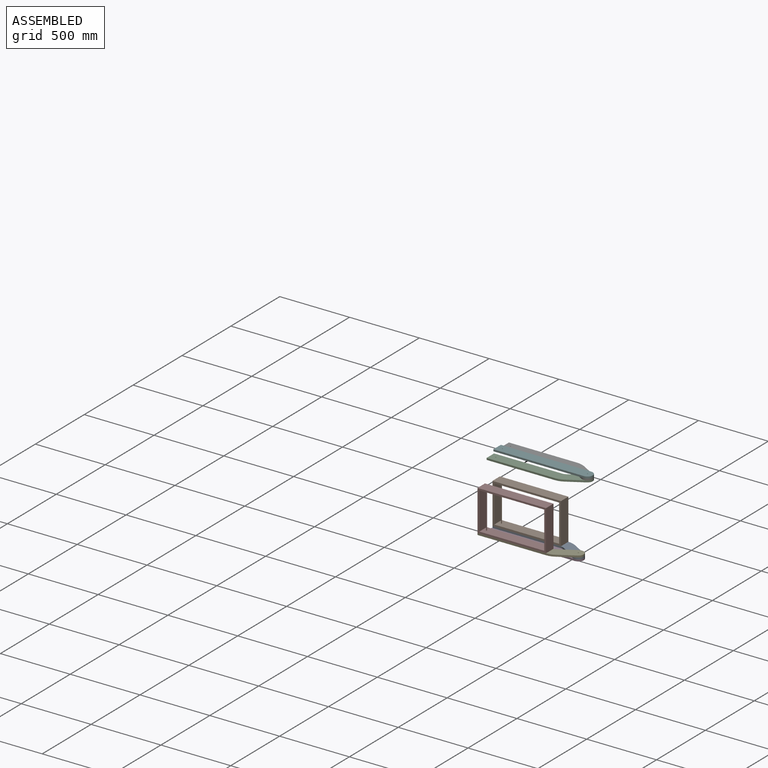
[diagram: assembled view]
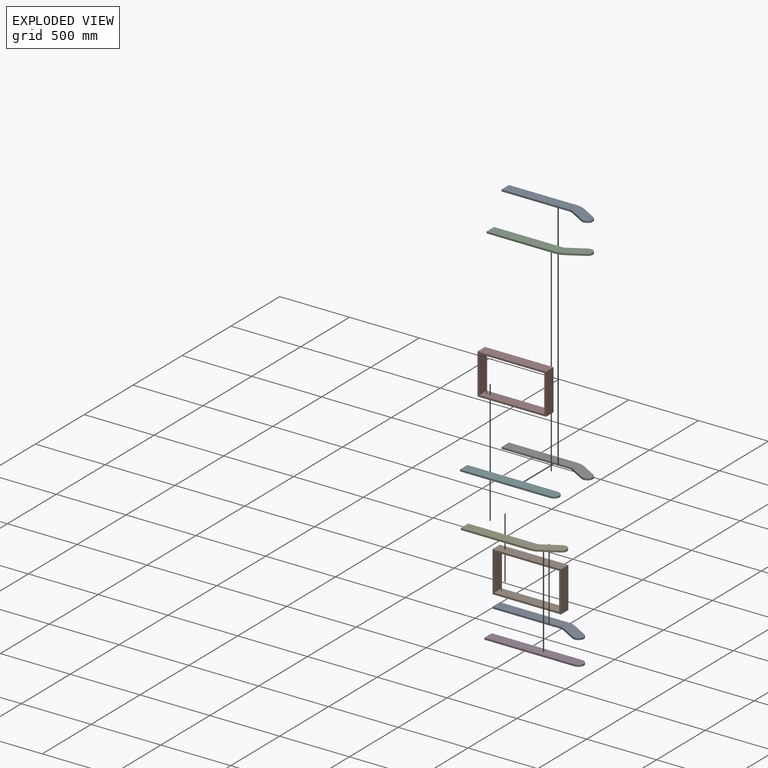
[diagram: exploded view]
GUIDED TOUR — MATED ASSEMBLY (Onshape document 441cf35459056222744654c6, AutoMate assembly 441cf35459056222744654c6_47491cbce0c1da971e15b4ae_b45ff6a24826b92992b46254_default)

This assembly has 9 components, labeled P0..P8 below (a component is one placed occurrence of a part; the same part can appear more than once), held together by 6 mates. A mate is a constraint between two components; its type names the relative motion it leaves free:
  FASTENED — locks the two components together rigidly (no relative motion),
  REVOLUTE — leaves rotation about the listed axis free (a hinge).
Axis/direction vectors are unit vectors and 'through' points are millimeter coordinates, both in the assembly's world frame.

MATES
  1. FASTENED "Fastened 1": P7 <-> P4, direction (0.000, 0.000, -1.000) through (-222.45, -278.30, -271.61) mm
  2. REVOLUTE "Revolute 1": P5 <-> P0, axis (0.000, 0.000, -1.000) through (287.54, 25.71, 114.91) mm
  3. REVOLUTE "Revolute 2": P3 <-> P8, axis (0.000, 0.000, 1.000) through (382.32, -202.10, -297.01) mm
  4. REVOLUTE "Revolute 4": P2 <-> P0, axis (0.000, 0.000, 1.000) through (287.54, 25.71, 102.21) mm
  5. REVOLUTE "Revolute 5": P4 <-> P8, axis (0.000, 0.000, -1.000) through (382.32, -202.10, -284.31) mm
  6. FASTENED "Fastened 2": P1 <-> P8, direction (0.000, 0.000, -1.000) through (-222.45, -125.90, -284.31) mm

ASSEMBLY ORDER
  1. P6 — the base component [order verified]
  2. P0 [order verified]
  3. P5 [order verified]
  4. P2 [order verified]
  5. P7 [order verified]
  6. P1 [order verified]
  7. P4 [order verified]
  8. P8 [order verified]
  9. P3 [order verified]
(P0 verified with a relaxed clearance tolerance: the source model stores slight part interference there.)
Order-tag legend:
  [order verified] — this step's position reverses a verified removal order: the component was checked to insert without passing through the ones already placed.

Of the 9 components, 4 carry the full construction recipe — the FeatureScript program that regenerates the part's solid from scratch; the rest are supplied as boundary geometry only.
Each toured component is shown spotlighted twice — in the assembled view, then in the exploded view, where a leader line traces a displaced component back to its assembled socket (saturated green if recipe-attached, orange if geometry-only; every other component desaturated gray) — followed by its recipe or geometry summary and the mates that hold it.
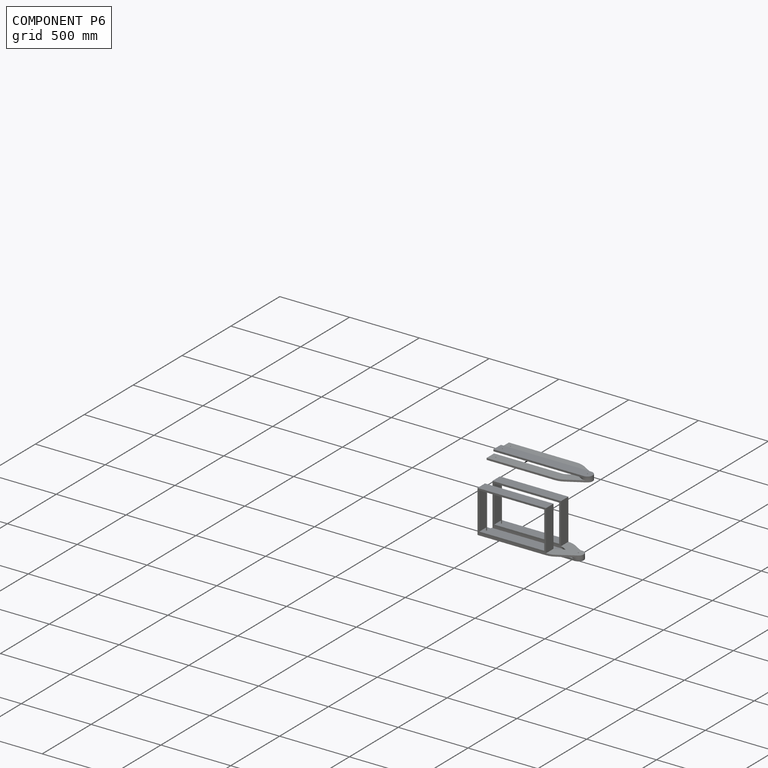
[diagram: component P6 — assembled]
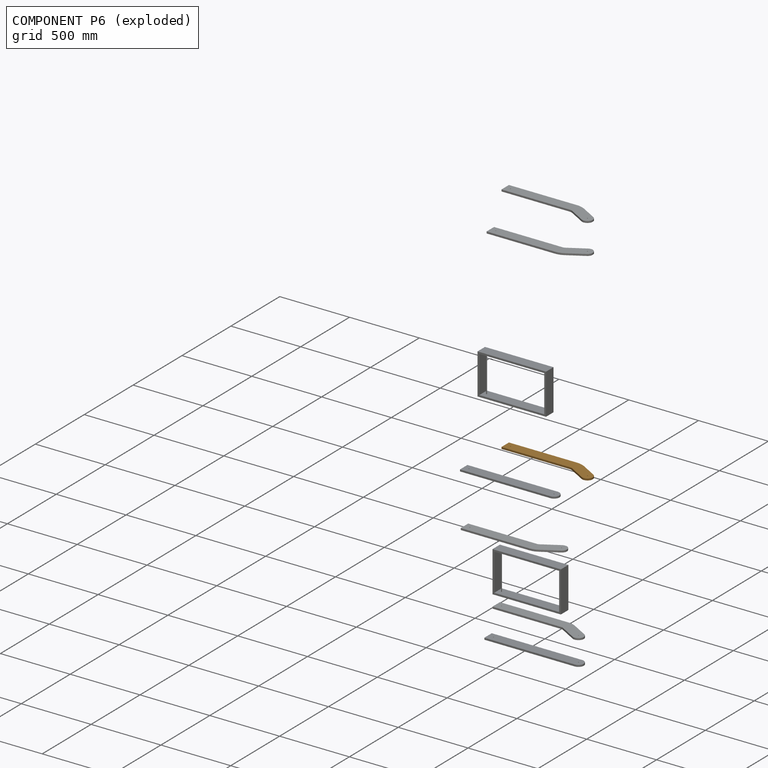
[diagram: component P6 — exploded]
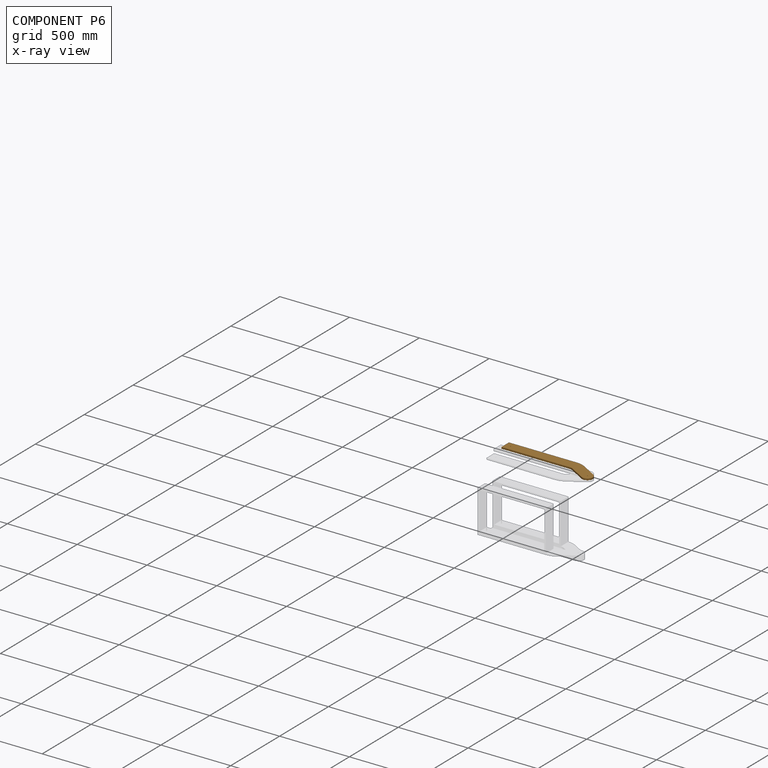
[diagram: component P6 — x-ray view]
COMPONENT P6 — geometry summary (no construction recipe available for this part):
  bounding box: 681.0 x 152.4 x 12.7 mm
  B-rep topology: 1 solid, 12 faces, 60 edges
  volume: 669141 mm^3 (51% of its bounding box)
  symmetry: mirror-symmetric across its z mid-plane
Held by: no mates (free).
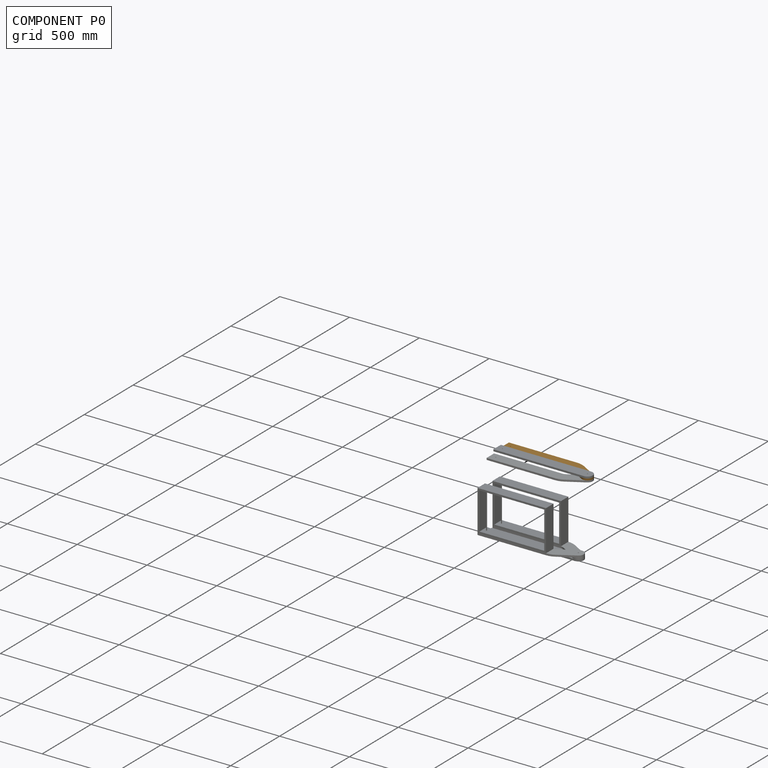
[diagram: component P0 — assembled]
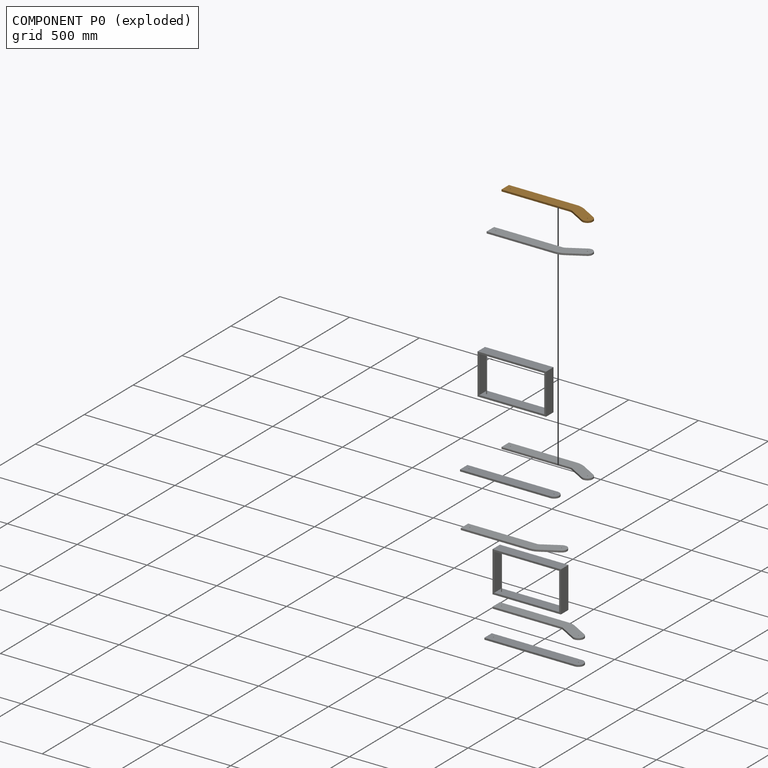
[diagram: component P0 — exploded]
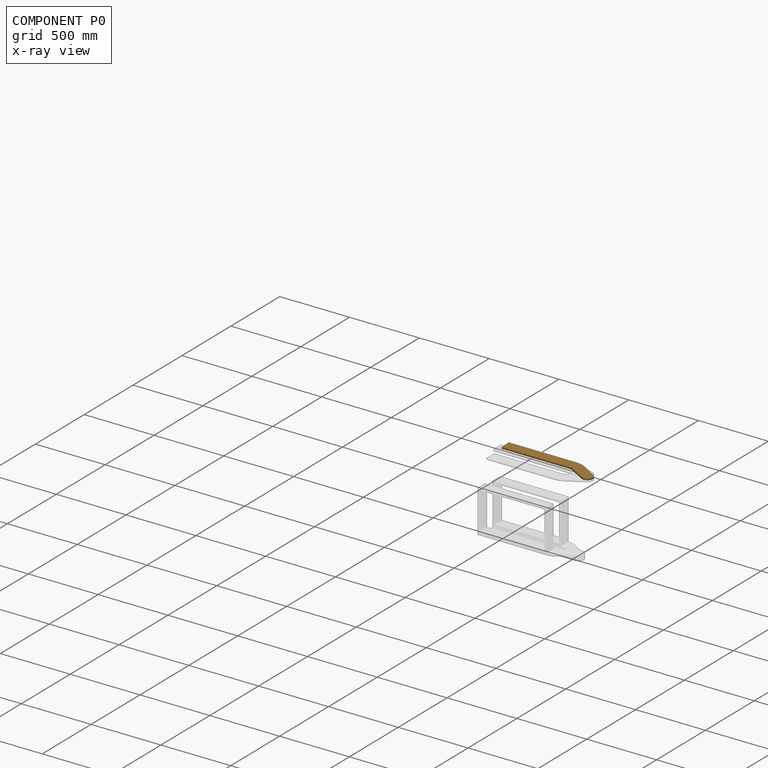
[diagram: component P0 — x-ray view]
COMPONENT P0 — geometry summary (no construction recipe available for this part):
  bounding box: 681.0 x 152.4 x 12.7 mm
  B-rep topology: 1 solid, 12 faces, 60 edges
  volume: 669141 mm^3 (51% of its bounding box)
  symmetry: mirror-symmetric across its z mid-plane
Held by: REVOLUTE mate "Revolute 1" to P5; REVOLUTE mate "Revolute 4" to P2.
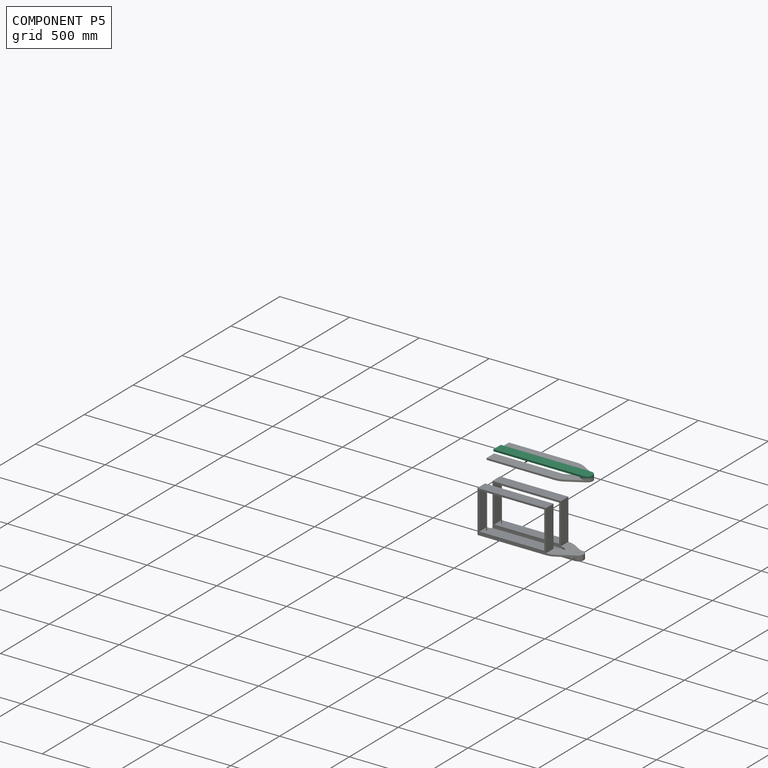
[diagram: component P5 — assembled]
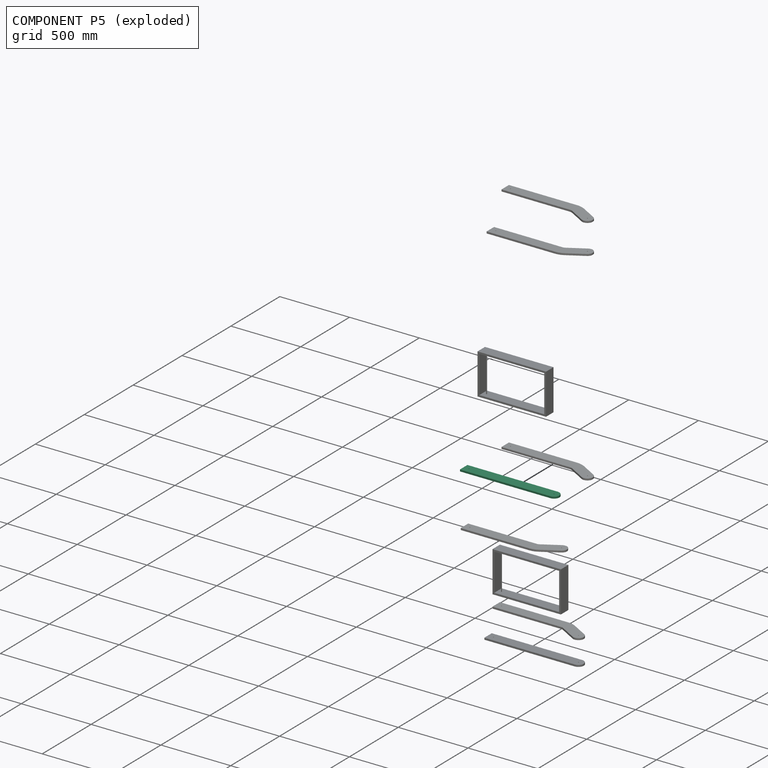
[diagram: component P5 — exploded]
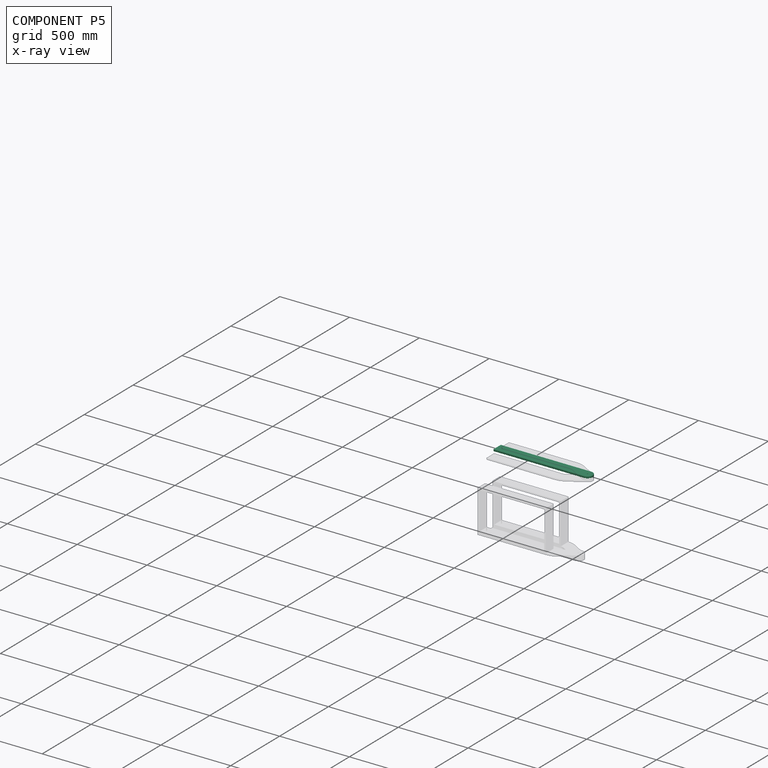
[diagram: component P5 — x-ray view]
COMPONENT P5 — same part as P3 (CADFS 00313189); its construction recipe is shown at P3.
Held by: REVOLUTE mate "Revolute 1" to P0.
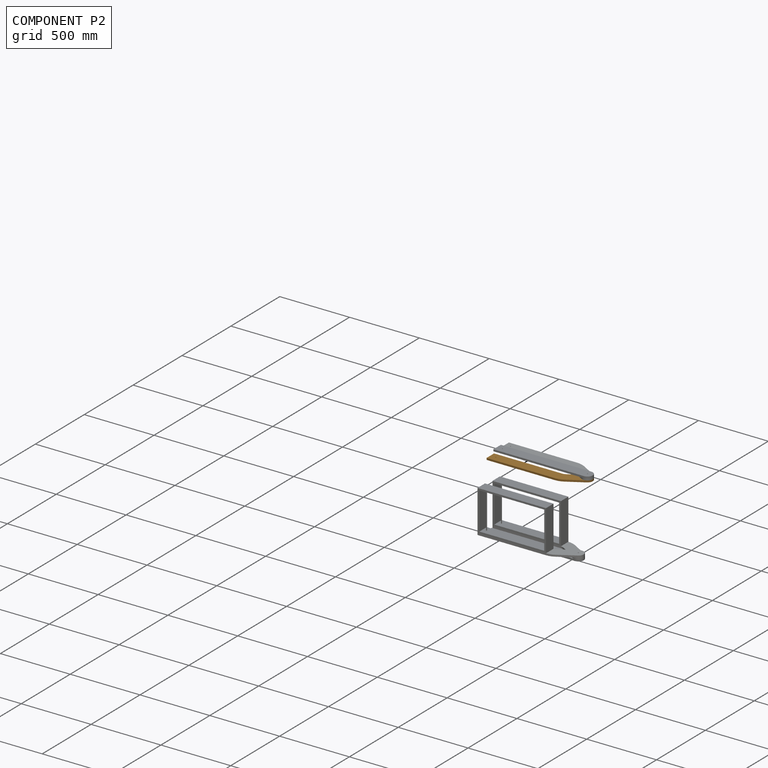
[diagram: component P2 — assembled]
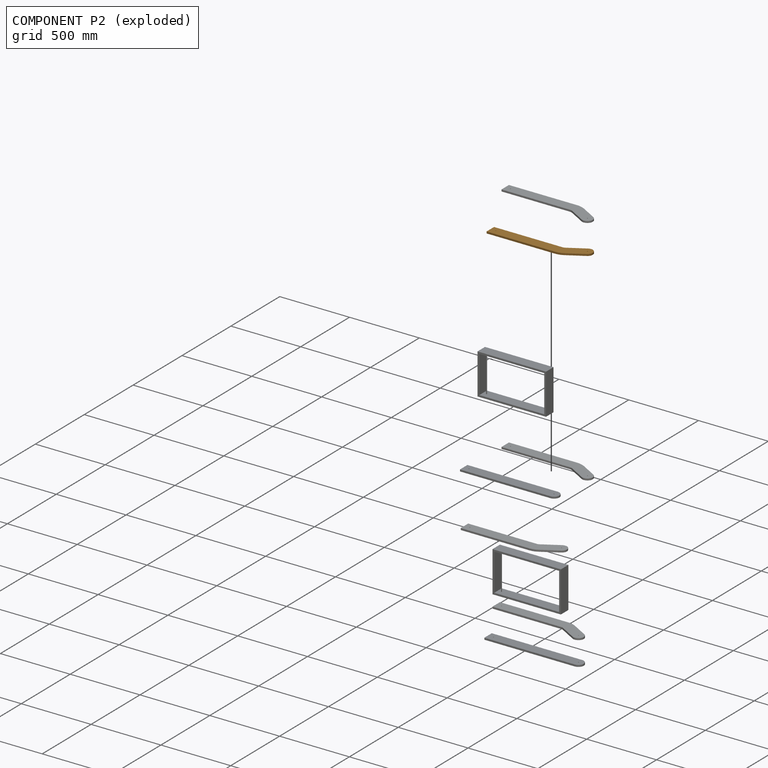
[diagram: component P2 — exploded]
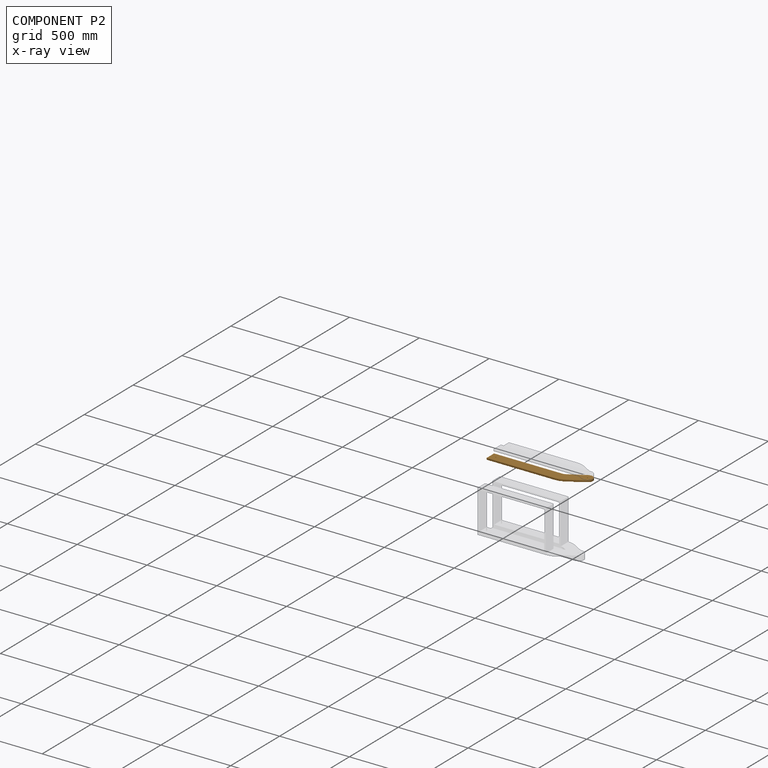
[diagram: component P2 — x-ray view]
COMPONENT P2 — geometry summary (no construction recipe available for this part):
  bounding box: 681.0 x 152.4 x 12.7 mm
  B-rep topology: 1 solid, 12 faces, 60 edges
  volume: 669141 mm^3 (51% of its bounding box)
  symmetry: mirror-symmetric across its z mid-plane
Held by: REVOLUTE mate "Revolute 4" to P0.
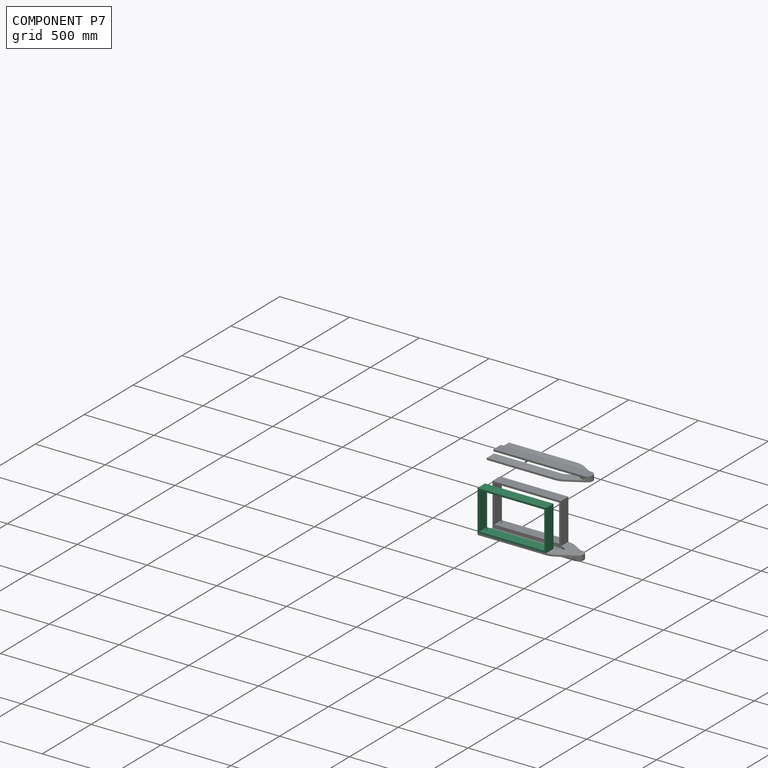
[diagram: component P7 — assembled]
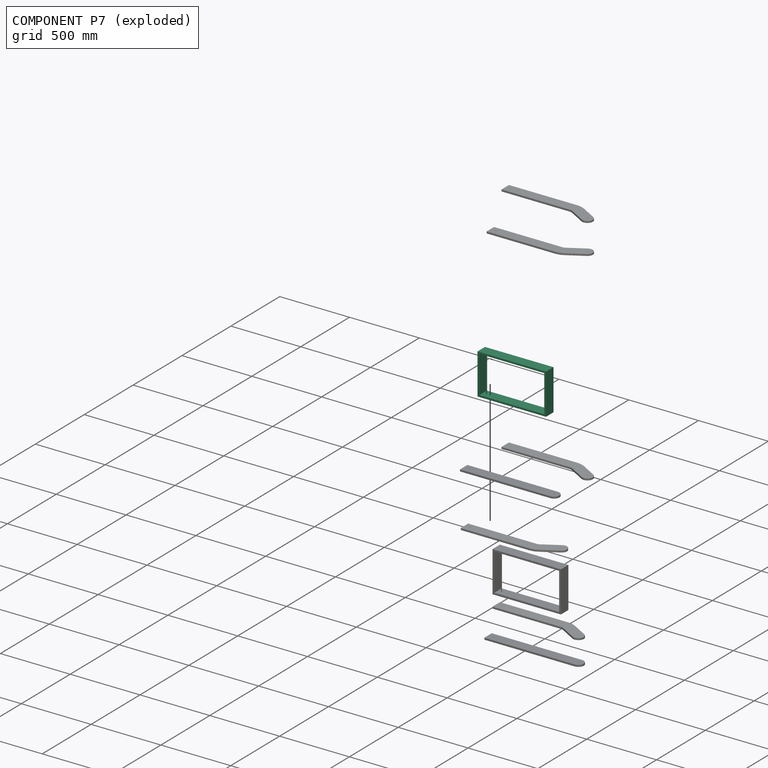
[diagram: component P7 — exploded]
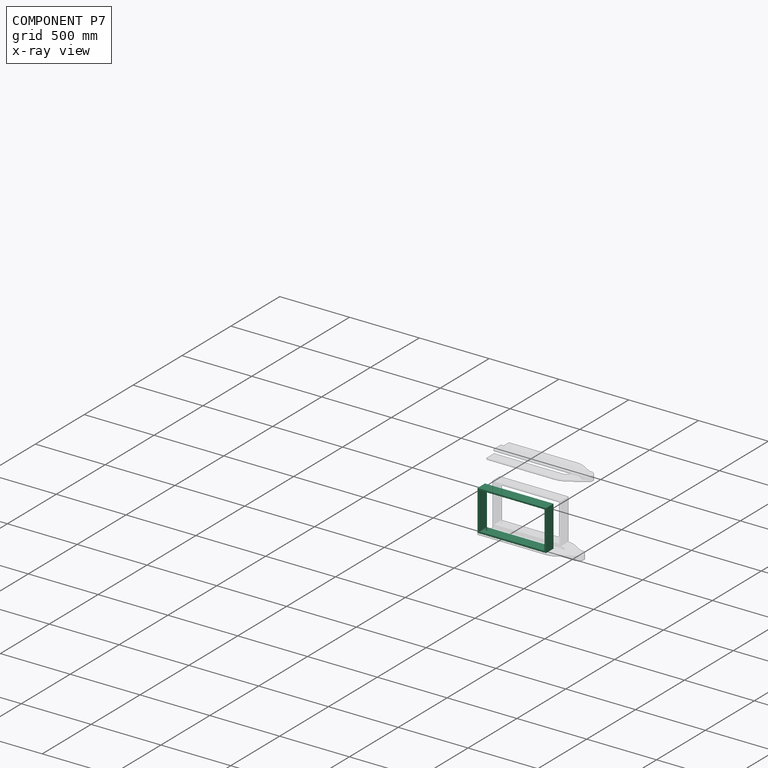
[diagram: component P7 — x-ray view]
COMPONENT P7 — same part as P1 (CADFS 00313185); its construction recipe is shown at P1.
Held by: FASTENED mate "Fastened 1" to P4.
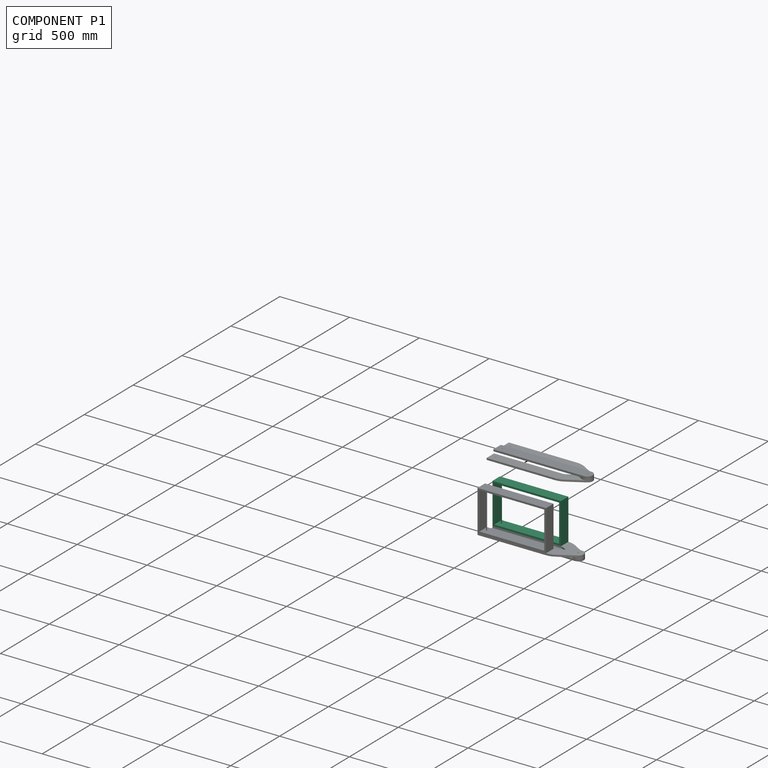
[diagram: component P1 — assembled]
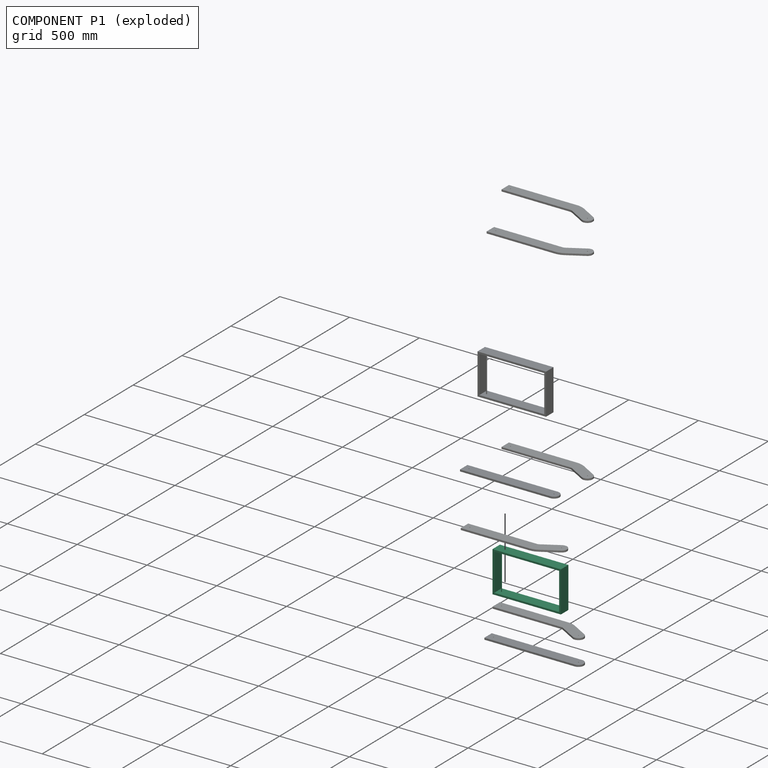
[diagram: component P1 — exploded]
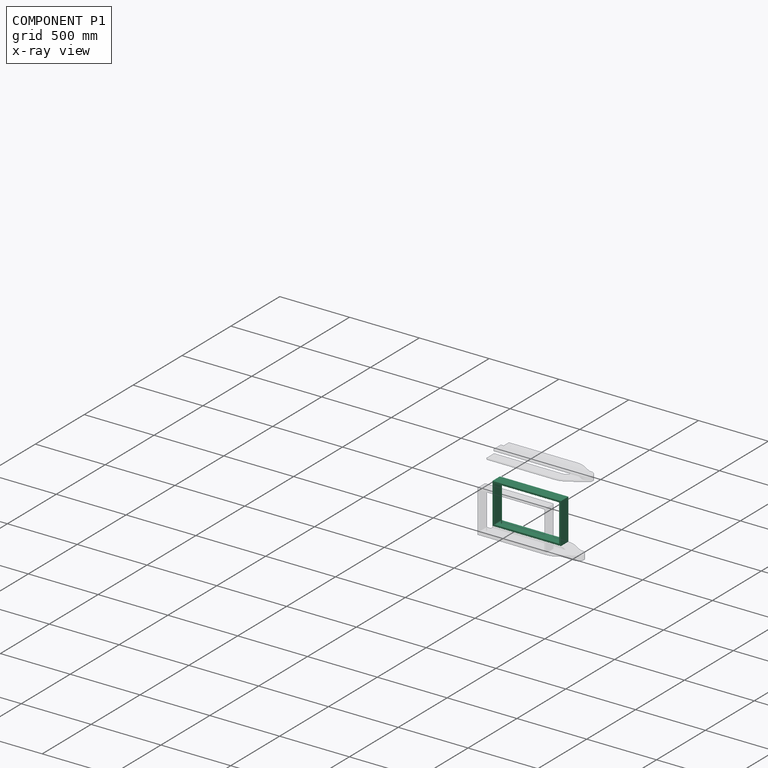
[diagram: component P1 — x-ray view]
COMPONENT P1 — recipe-attached (CADFS 00313185, mesh-verified: the recipe's output STEP matches this component's geometry to below the mesh-comparison resolution (tessellation chordal tolerance ~0.864 mm)).
Held by: FASTENED mate "Fastened 2" to P8.
Construction recipe (FeatureScript — the CAD program that rebuilds this solid; sketch coordinates are in the units given by the * unit suffixes, e.g. mm):

FeatureScript 1511;
import(path : "onshape/std/geometry.fs", version : "1511.0");
import(path : "onshape/std/common.fs", version : "1511.0");
const mm = millimeter;
const VERTEX = EntityType.VERTEX;
const EDGE = EntityType.EDGE;
const FACE = EntityType.FACE;
const BODY = EntityType.BODY;
function v(x, y){return vector(x, y);}
function OD(order){return orderDisambiguation(order);}
function OSD(set){return originalSetDisambiguation(set);}
function TD(topology){return topologyDisambiguation(topology);}
function TDD(query){return trueDependencyDisambiguation(query);}
function sQuery(a, b, c) {return sketchEntityQuery(a, b, c);}

annotation { "Feature Type Name" : "Feature", "Feature Type Description" : "" }
export const myFeature = defineFeature(function(context is Context, id is Id, definition is map)
    precondition{}
    {
        {
            var Q0;
            Q0=qCreatedBy(makeId("Front.planeOp"),FACE);
            var sketch = newSketch(context, id + "F0", { "sketchPlane" : qUnion([Q0])});
            skLineSegment(sketch, "E0.bottom", {"start": v(-245.24, -146.05) * mm, "end": v(245.24, -146.05) * mm});
            skLineSegment(sketch, "E0.top", {"start": v(-245.24, 146.05) * mm, "end": v(245.24, 146.05) * mm});
            skLineSegment(sketch, "E0.left", {"start": v(-245.24, -146.05) * mm, "end": v(-245.24, 146.05) * mm});
            skLineSegment(sketch, "E0.right", {"start": v(245.24, -146.05) * mm, "end": v(245.24, 146.05) * mm});
            skPoint(sketch, "E0.middle", {"position": v(0, 0) * mm});
            skLineSegment(sketch, "E1.bottom", {"start": v(-232.54, -133.35) * mm, "end": v(232.54, -133.35) * mm});
            skLineSegment(sketch, "E1.top", {"start": v(-232.54, 133.35) * mm, "end": v(232.54, 133.35) * mm});
            skLineSegment(sketch, "E1.left", {"start": v(-232.54, -133.35) * mm, "end": v(-232.54, 133.35) * mm});
            skLineSegment(sketch, "E1.right", {"start": v(232.54, -133.35) * mm, "end": v(232.54, 133.35) * mm});
            skSolve(sketch);
        }
        {
            var Q0;
            Q0 = qSketchRegion(id + "F0", true);
            extrude(context, id + "F1", {"entities" : qUnion([Q0]), "endBound" : BoundingType.SYMMETRIC, "depth" : 76.2 * mm});
        }
        {
            var Q0;
            Q0=makeQuery(id+"F1.opExtrude","SWEPT_FACE",FACE,{"disambiguationData":[OSD([sQuery(id+"F0.wireOp",EDGE,"E0.top")])]});
            var sketch = newSketch(context, id + "F2", { "sketchPlane" : qUnion([Q0])});
            skLineSegment(sketch, "E2", {"start": v(-245.24, 0) * mm, "end": v(-207.14, 0) * mm, "construction": true});
            skPoint(sketch, "E2.endSnap0", {"position": v(-245.24, 0) * mm});
            skCircle(sketch, "E3", {"center": v(-207.14, 0) * mm, "radius": 3.18 * mm});
            skSolve(sketch);
        }
        {
            var Q0;
            Q0=makeQuery(id+"F2.imprint","IMPRINT",FACE,{"disambiguationData":[TD([[makeQuery(id+"F2.imprint","IMPRINT",EDGE,{"derivedFrom":sQuery(id+"F2.wireOp",EDGE,"E3")}),1.0]])]});
            extrude(context, id + "F3", {"entities" : qUnion([Q0]), "operationType" : NewBodyOperationType.ADD, "oppositeDirection" : true, "depth" : 292.35 * mm});
        }
    });
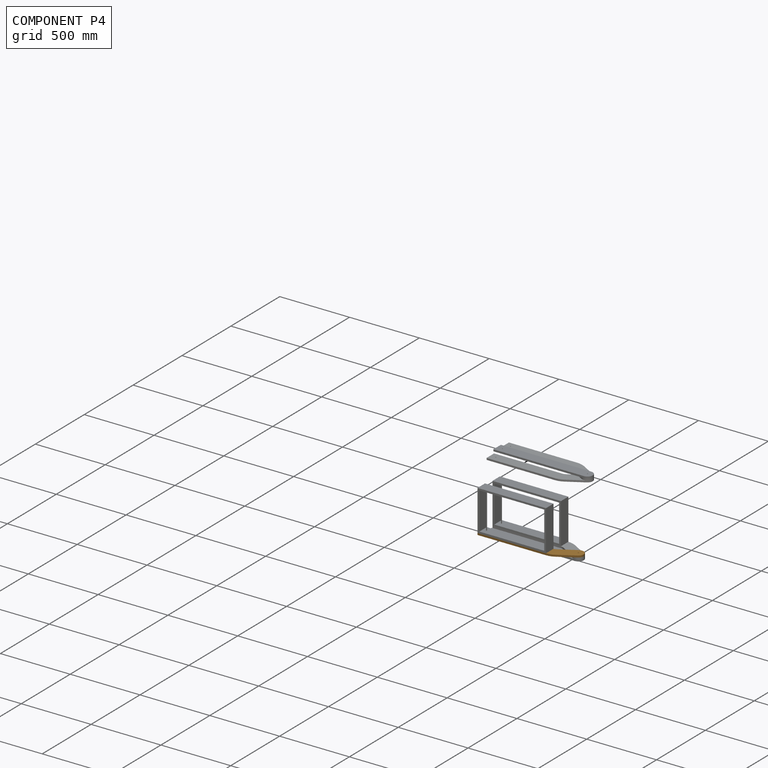
[diagram: component P4 — assembled]
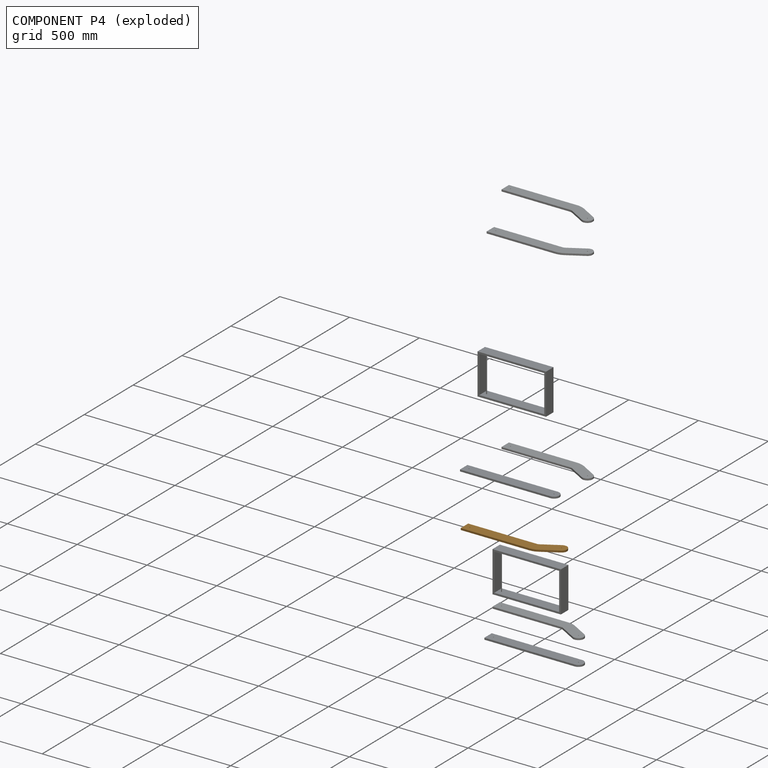
[diagram: component P4 — exploded]
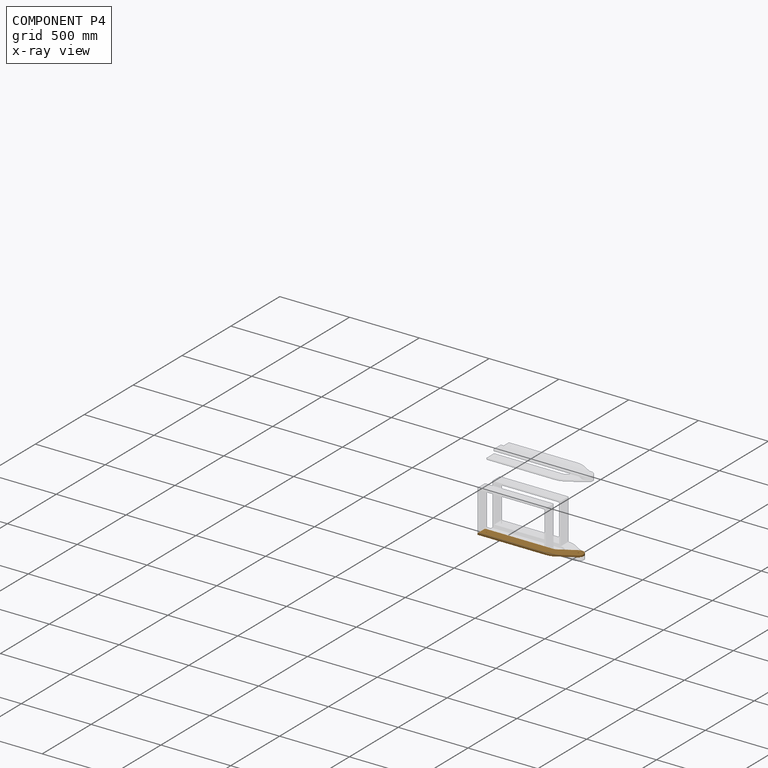
[diagram: component P4 — x-ray view]
COMPONENT P4 — geometry summary (no construction recipe available for this part):
  bounding box: 681.0 x 152.4 x 12.7 mm
  B-rep topology: 1 solid, 12 faces, 60 edges
  volume: 669141 mm^3 (51% of its bounding box)
  symmetry: mirror-symmetric across its z mid-plane
Held by: FASTENED mate "Fastened 1" to P7; REVOLUTE mate "Revolute 5" to P8.
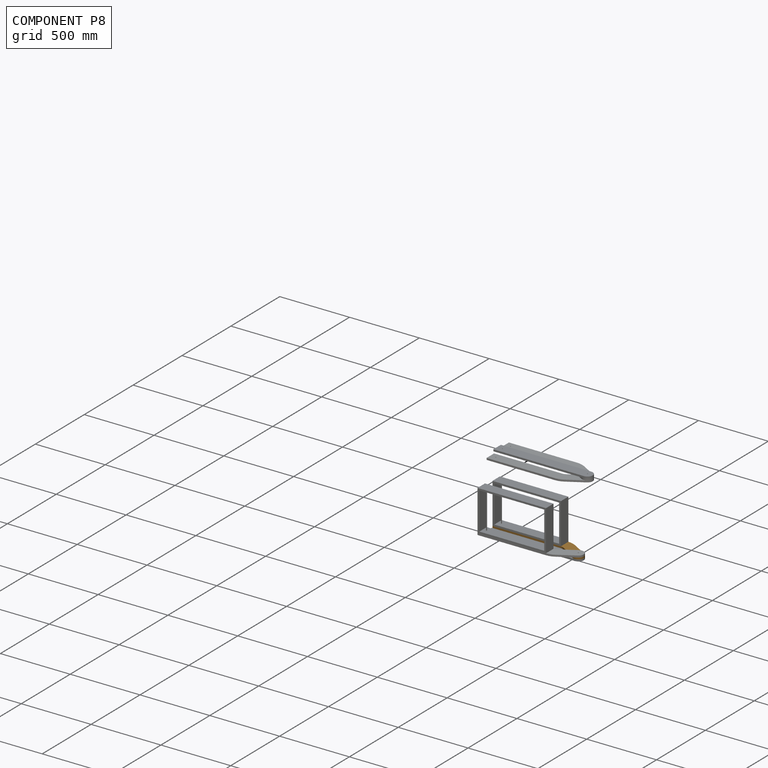
[diagram: component P8 — assembled]
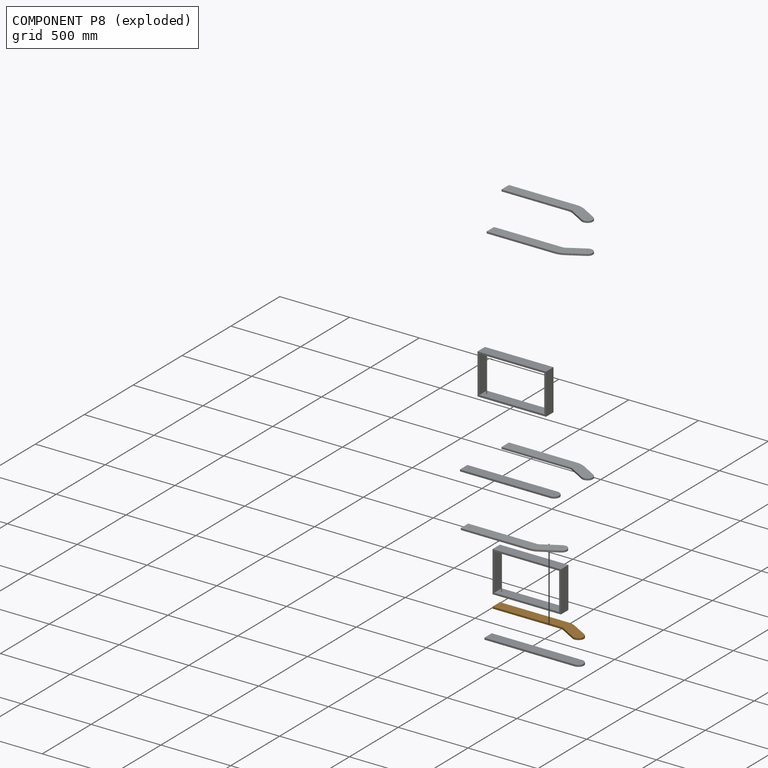
[diagram: component P8 — exploded]
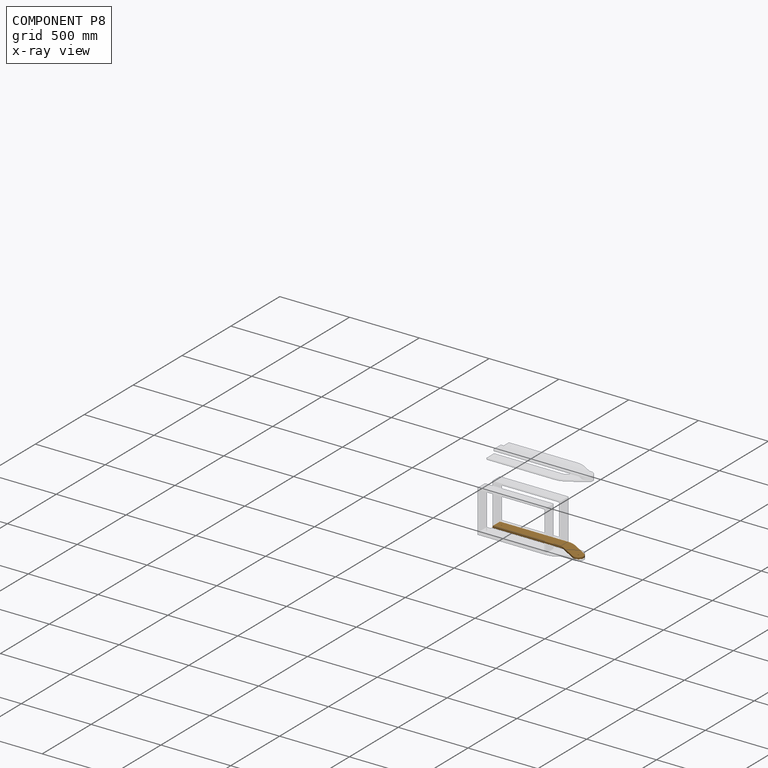
[diagram: component P8 — x-ray view]
COMPONENT P8 — geometry summary (no construction recipe available for this part):
  bounding box: 681.0 x 152.4 x 12.7 mm
  B-rep topology: 1 solid, 12 faces, 60 edges
  volume: 669141 mm^3 (51% of its bounding box)
  symmetry: mirror-symmetric across its z mid-plane
Held by: REVOLUTE mate "Revolute 2" to P3; REVOLUTE mate "Revolute 5" to P4; FASTENED mate "Fastened 2" to P1.
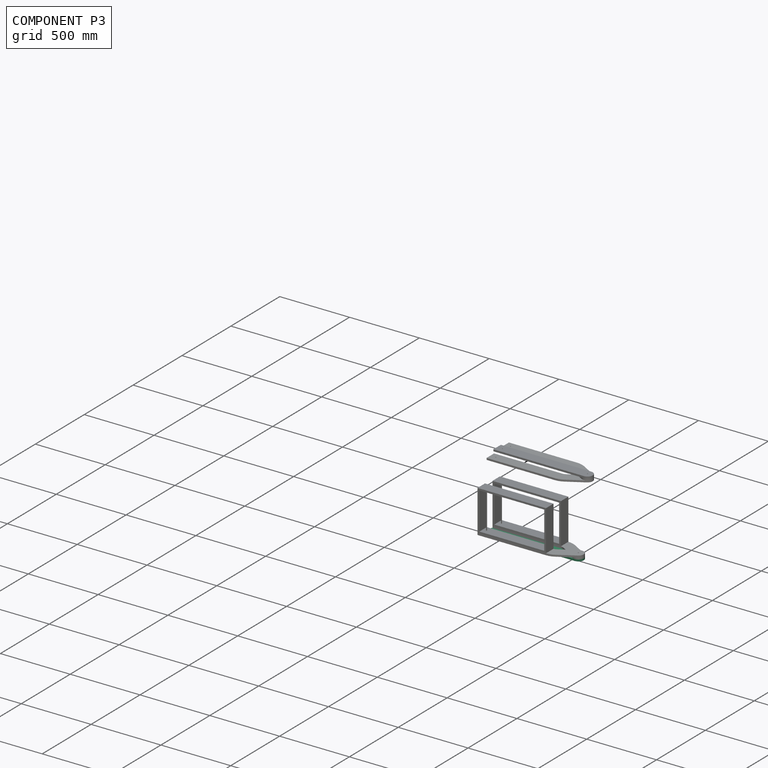
[diagram: component P3 — assembled]
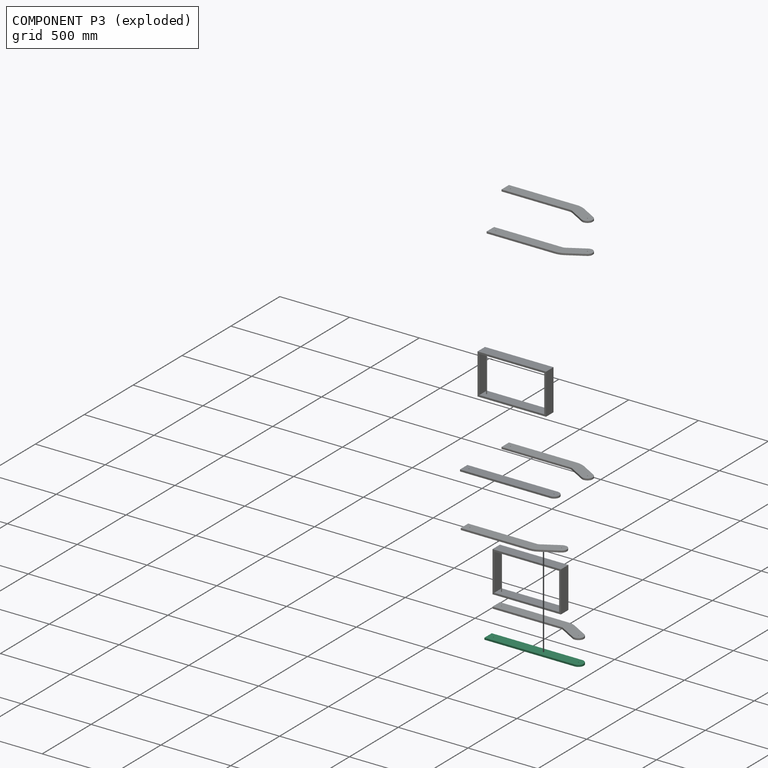
[diagram: component P3 — exploded]
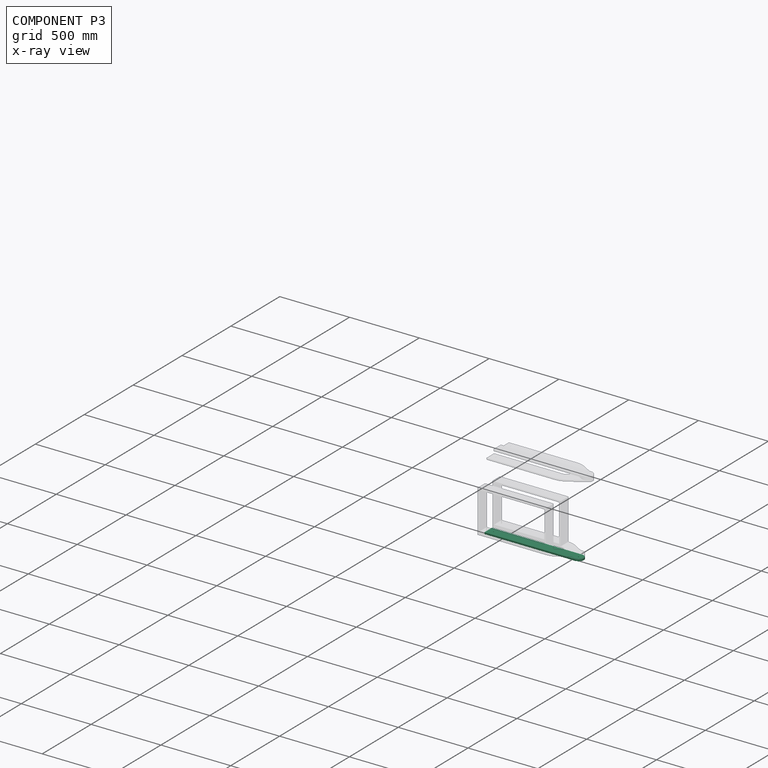
[diagram: component P3 — x-ray view]
COMPONENT P3 — recipe-attached (CADFS 00313189, mesh-verified: the recipe's output STEP matches this component's geometry to below the mesh-comparison resolution (tessellation chordal tolerance ~1.03 mm)).
Held by: REVOLUTE mate "Revolute 2" to P8.
Construction recipe (FeatureScript — the CAD program that rebuilds this solid; sketch coordinates are in the units given by the * unit suffixes, e.g. mm):

FeatureScript 1511;
import(path : "onshape/std/geometry.fs", version : "1511.0");
import(path : "onshape/std/common.fs", version : "1511.0");
const mm = millimeter;
const VERTEX = EntityType.VERTEX;
const EDGE = EntityType.EDGE;
const FACE = EntityType.FACE;
const BODY = EntityType.BODY;
function v(x, y){return vector(x, y);}
function OD(order){return orderDisambiguation(order);}
function OSD(set){return originalSetDisambiguation(set);}
function TD(topology){return topologyDisambiguation(topology);}
function TDD(query){return trueDependencyDisambiguation(query);}
function sQuery(a, b, c) {return sketchEntityQuery(a, b, c);}

annotation { "Feature Type Name" : "Feature", "Feature Type Description" : "" }
export const myFeature = defineFeature(function(context is Context, id is Id, definition is map)
    precondition{}
    {
        {
            var Q0;
            Q0=qCreatedBy(makeId("Top.planeOp"),FACE);
            var sketch = newSketch(context, id + "F0", { "sketchPlane" : qUnion([Q0])});
            skLineSegment(sketch, "E0.bottom", {"start": v(-342.9, -38.1) * mm, "end": v(304.8, -38.1) * mm});
            skLineSegment(sketch, "E0.top", {"start": v(-342.9, 38.1) * mm, "end": v(304.8, 38.1) * mm});
            skLineSegment(sketch, "E0.left", {"start": v(-342.9, -38.1) * mm, "end": v(-342.9, 38.1) * mm});
            skPoint(sketch, "E0.middle", {"position": v(0, 0) * mm});
            skCircle(sketch, "E1", {"center": v(-304.8, 0) * mm, "radius": 3.18 * mm});
            skCircle(sketch, "E2", {"center": v(304.8, 0) * mm, "radius": 3.18 * mm});
            skArc(sketch, "E3", {"start": v(304.8, -38.1) * mm, "mid": v(342.9, 0) * mm, "end": v(304.8, 38.1) * mm});
            skPoint(sketch, "E4.orphan", {"position": v(342.9, 38.1) * mm});
            skPoint(sketch, "E5.orphan", {"position": v(342.9, -38.1) * mm});
            skPoint(sketch, "E6", {"position": v(342.9, 0) * mm});
            skSolve(sketch);
        }
        {
            var Q0;
            Q0=makeQuery(id+"F0.imprint","IMPRINT",FACE,{"disambiguationData":[TD([[makeQuery(id+"F0.imprint","IMPRINT",EDGE,{"derivedFrom":sQuery(id+"F0.wireOp",EDGE,"E0.bottom")}),1.0]])]});
            extrude(context, id + "F1", {"entities" : qUnion([Q0]), "depth" : 12.7 * mm});
        }
    });
PROVENANCE & LICENSES
Assembly (occurrences, transforms, mates, per-part STEP geometry): AutoMate dataset, Zenodo record 7776208, CC0.
Construction recipes: CADFS (HuggingFace VladPyatov/CADFS, CC-BY-4.0, layered over the ABC dataset), FeatureScript reconstruction programs keyed by ABC model id.
Join: ABC meta listings map ABC model id -> Onshape documentId; within a shared document, parts are matched by geometric signature (bounding-box dims + volume at 0.1% relative tolerance, exact B-rep face/solid counts).
Verification: 4 of this assembly's 9 components carry a recipe attachment, and every attachment is mesh-verified: the CADFS STEP and the AutoMate member STEP were compared as meshes in their shared local frame (symmetric sampled-point-to-mesh distance); worst across the 4 attachments: below the mesh-comparison resolution (tessellation chordal tolerance ~1.03 mm) on a 690 mm part.
Renders: orthographic iso camera (az 35 / el 25); the floor grid conveys scale (grid pitch printed in each image; no ruler). In the exploded view each component is displaced by its stored offset vector: the offsets alone carry the explosion direction (mate normal/axis signs are not orientation cues and do not encode it), and separation distances are assigned per mate-chain, not proportionally to assembly-order depth.
